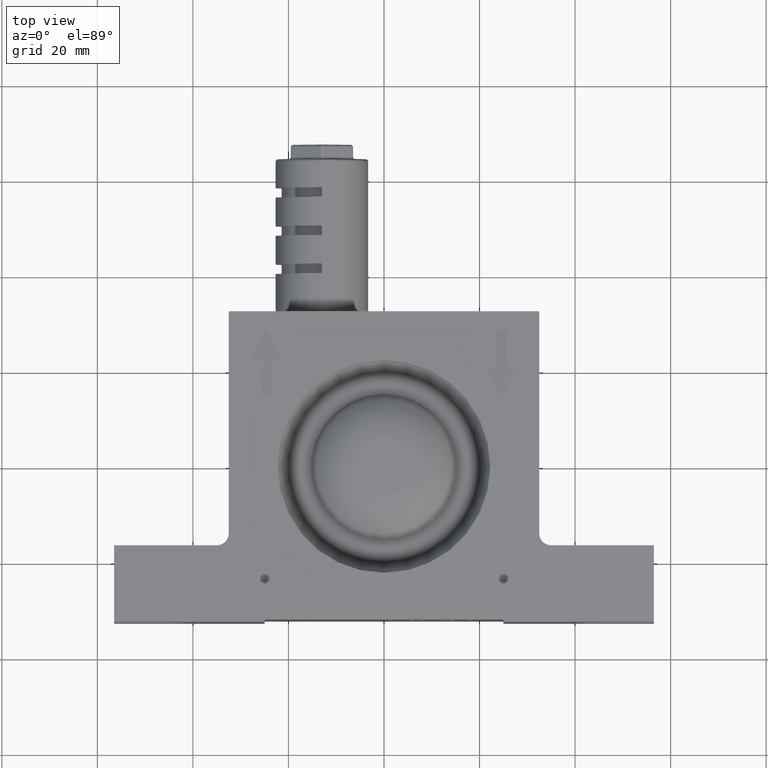
[diagram: clean part render]
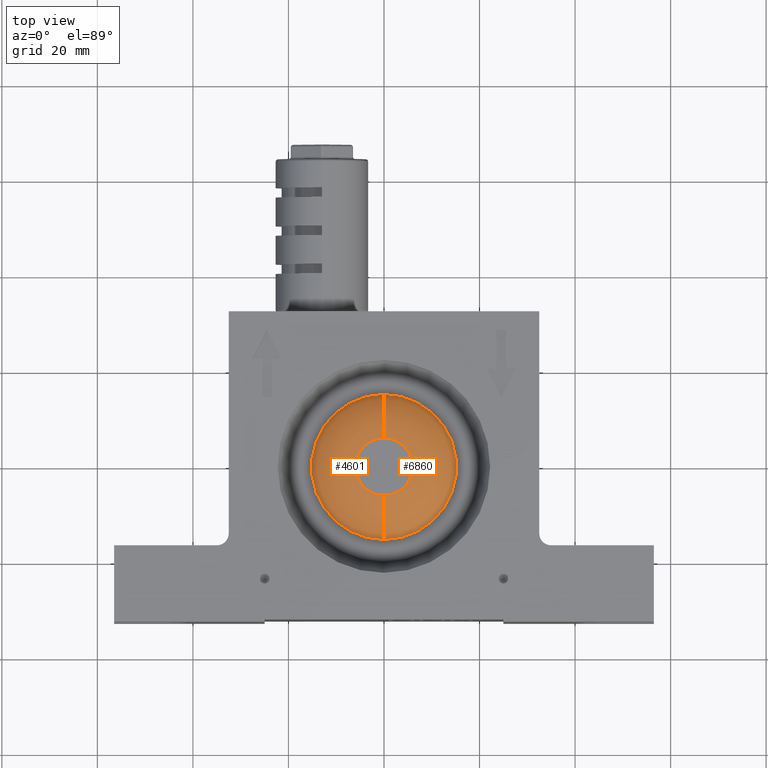
[diagram: same view with one multi-face feature highlighted, each face labeled with its STEP entity id]
A machine part, top view. The highlighted faces form ONE feature: a constant-radius fillet chain: 2 tangent blend faces with common blend radius 11.8 mm. The faces share edges in the B-rep.
Their STEP definitions:
[1] entity #6860 (Torus):
#270 = EDGE_CURVE ( 'NONE', #1251, #5383, #6215, .T. ) ;
#600 = AXIS2_PLACEMENT_3D ( 'NONE', #3809, #6098, #5522 ) ;
#798 = VERTEX_POINT ( 'NONE', #5099 ) ;
#815 = DIRECTION ( 'NONE',  ( 1.665334536937735100E-016, 1.000000000000000000, 0.0000000000000000000 ) ) ;
#888 = DIRECTION ( 'NONE',  ( 1.665334536937734800E-016, 1.000000000000000000, -1.224606353822375800E-016 ) ) ;
#1251 = VERTEX_POINT ( 'NONE', #5003 ) ;
#1829 = EDGE_CURVE ( 'NONE', #798, #1251, #2789, .T. ) ;
#2130 = TOROIDAL_SURFACE ( 'NONE', #3122, 6.000000000000000000, 11.79999999999999900 ) ;
#2501 = CARTESIAN_POINT ( 'NONE',  ( 1.040493808504870100E-015, 6.000000000000000000, 11.70000000000000100 ) ) ;
#2515 = DIRECTION ( 'NONE',  ( 8.602726321297810600E-018, 1.224606353822375800E-016, 1.000000000000000000 ) ) ;
#2789 = CIRCLE ( 'NONE', #600, 11.80000000000000100 ) ;
#2818 = ORIENTED_EDGE ( 'NONE', *, *, #1829, .F. ) ;
#3119 = CARTESIAN_POINT ( 'NONE',  ( 3.540626204963575200E-018, -8.270978742347319100E-016, 7.311570247933880200 ) ) ;
#3122 = AXIS2_PLACEMENT_3D ( 'NONE', #4115, #5164, #888 ) ;
#3436 = CARTESIAN_POINT ( 'NONE',  ( 4.129308634222925400E-017, 3.673819061467370500E-017, 11.70000000000000100 ) ) ;
#3809 = CARTESIAN_POINT ( 'NONE',  ( -1.794207885900138000E-015, -6.000000000000001800, -0.09999999999999927000 ) ) ;
#3908 = FACE_OUTER_BOUND ( 'NONE', #6897, .T. ) ;
#3959 = DIRECTION ( 'NONE',  ( 1.000000000000000000, -1.665334536937734800E-016, -8.602726321297790500E-018 ) ) ;
#4021 = ORIENTED_EDGE ( 'NONE', *, *, #5856, .T. ) ;
#4029 = CARTESIAN_POINT ( 'NONE',  ( 2.531847008248166400E-015, 15.18197290673095300, 7.311570247933878400 ) ) ;
#4115 = CARTESIAN_POINT ( 'NONE',  ( -6.021908424908500500E-017, -1.734723475976804900E-015, -0.1000000000000000100 ) ) ;
#4586 = DIRECTION ( 'NONE',  ( 1.665334536937735100E-016, 1.000000000000000000, 0.0000000000000000000 ) ) ;
#5003 = CARTESIAN_POINT ( 'NONE',  ( -3.038358461822026700E-015, -6.000000000000000000, 11.70000000000000100 ) ) ;
#5099 = CARTESIAN_POINT ( 'NONE',  ( -4.384021208335229300E-015, -15.18197290673095300, 7.311570247933882000 ) ) ;
#5164 = DIRECTION ( 'NONE',  ( 8.602726321297810600E-018, 1.224606353822375800E-016, 1.000000000000000000 ) ) ;
#5383 = VERTEX_POINT ( 'NONE', #2501 ) ;
#5481 = ORIENTED_EDGE ( 'NONE', *, *, #6424, .T. ) ;
#5522 = DIRECTION ( 'NONE',  ( -2.889981336085088800E-016, -1.000000000000000000, 0.0000000000000000000 ) ) ;
#5613 = CIRCLE ( 'NONE', #5990, 15.18197290673095200 ) ;
#5821 = DIRECTION ( 'NONE',  ( -1.665334536937734600E-016, -1.000000000000000000, 1.142620584711829400E-016 ) ) ;
#5856 = EDGE_CURVE ( 'NONE', #798, #6806, #5613, .T. ) ;
#5990 = AXIS2_PLACEMENT_3D ( 'NONE', #3119, #2515, #5821 ) ;
#6098 = DIRECTION ( 'NONE',  ( -1.000000000000000000, 2.889981336085088300E-016, 8.602726321297775100E-018 ) ) ;
#6191 = CARTESIAN_POINT ( 'NONE',  ( 9.389816379135560200E-016, 5.999999999999998200, -0.1000000000000007400 ) ) ;
#6215 = CIRCLE ( 'NONE', #6281, 6.000000000000000000 ) ;
#6217 = AXIS2_PLACEMENT_3D ( 'NONE', #6191, #3959, #4586 ) ;
#6281 = AXIS2_PLACEMENT_3D ( 'NONE', #3436, #6761, #815 ) ;
#6372 = CIRCLE ( 'NONE', #6217, 11.79999999999999700 ) ;
#6424 = EDGE_CURVE ( 'NONE', #6806, #5383, #6372, .T. ) ;
#6653 = ORIENTED_EDGE ( 'NONE', *, *, #270, .F. ) ;
#6761 = DIRECTION ( 'NONE',  ( 8.602726321297810600E-018, 1.224606353822375800E-016, 1.000000000000000000 ) ) ;
#6806 = VERTEX_POINT ( 'NONE', #4029 ) ;
#6860 = ADVANCED_FACE ( 'NONE', ( #3908 ), #2130, .T. ) ;
#6897 = EDGE_LOOP ( 'NONE', ( #2818, #4021, #5481, #6653 ) ) ;
[2] entity #4601 (Torus):
#441 = CARTESIAN_POINT ( 'NONE',  ( 4.129308634222925400E-017, 3.673819061467370500E-017, 11.70000000000000100 ) ) ;
#600 = AXIS2_PLACEMENT_3D ( 'NONE', #3809, #6098, #5522 ) ;
#798 = VERTEX_POINT ( 'NONE', #5099 ) ;
#1251 = VERTEX_POINT ( 'NONE', #5003 ) ;
#1414 = ORIENTED_EDGE ( 'NONE', *, *, #1829, .T. ) ;
#1440 = CARTESIAN_POINT ( 'NONE',  ( 3.540626204963575200E-018, -8.270978742347319100E-016, 7.311570247933880200 ) ) ;
#1699 = EDGE_CURVE ( 'NONE', #6806, #798, #6107, .T. ) ;
#1829 = EDGE_CURVE ( 'NONE', #798, #1251, #2789, .T. ) ;
#2501 = CARTESIAN_POINT ( 'NONE',  ( 1.040493808504870100E-015, 6.000000000000000000, 11.70000000000000100 ) ) ;
#2789 = CIRCLE ( 'NONE', #600, 11.80000000000000100 ) ;
#3444 = EDGE_CURVE ( 'NONE', #5383, #1251, #4317, .T. ) ;
#3518 = ORIENTED_EDGE ( 'NONE', *, *, #3444, .F. ) ;
#3709 = DIRECTION ( 'NONE',  ( 1.665334536937734800E-016, 1.000000000000000000, -1.224606353822375800E-016 ) ) ;
#3777 = AXIS2_PLACEMENT_3D ( 'NONE', #1440, #4249, #6419 ) ;
#3809 = CARTESIAN_POINT ( 'NONE',  ( -1.794207885900138000E-015, -6.000000000000001800, -0.09999999999999927000 ) ) ;
#3959 = DIRECTION ( 'NONE',  ( 1.000000000000000000, -1.665334536937734800E-016, -8.602726321297790500E-018 ) ) ;
#4018 = ORIENTED_EDGE ( 'NONE', *, *, #1699, .T. ) ;
#4029 = CARTESIAN_POINT ( 'NONE',  ( 2.531847008248166400E-015, 15.18197290673095300, 7.311570247933878400 ) ) ;
#4084 = AXIS2_PLACEMENT_3D ( 'NONE', #441, #5773, #5837 ) ;
#4249 = DIRECTION ( 'NONE',  ( 8.602726321297810600E-018, 1.224606353822375800E-016, 1.000000000000000000 ) ) ;
#4317 = CIRCLE ( 'NONE', #4084, 6.000000000000000000 ) ;
#4456 = FACE_OUTER_BOUND ( 'NONE', #5467, .T. ) ;
#4586 = DIRECTION ( 'NONE',  ( 1.665334536937735100E-016, 1.000000000000000000, 0.0000000000000000000 ) ) ;
#4601 = ADVANCED_FACE ( 'NONE', ( #4456 ), #5050, .T. ) ;
#5003 = CARTESIAN_POINT ( 'NONE',  ( -3.038358461822026700E-015, -6.000000000000000000, 11.70000000000000100 ) ) ;
#5028 = ORIENTED_EDGE ( 'NONE', *, *, #6424, .F. ) ;
#5050 = TOROIDAL_SURFACE ( 'NONE', #6790, 6.000000000000000000, 11.79999999999999900 ) ;
#5099 = CARTESIAN_POINT ( 'NONE',  ( -4.384021208335229300E-015, -15.18197290673095300, 7.311570247933882000 ) ) ;
#5383 = VERTEX_POINT ( 'NONE', #2501 ) ;
#5467 = EDGE_LOOP ( 'NONE', ( #4018, #1414, #3518, #5028 ) ) ;
#5522 = DIRECTION ( 'NONE',  ( -2.889981336085088800E-016, -1.000000000000000000, 0.0000000000000000000 ) ) ;
#5773 = DIRECTION ( 'NONE',  ( 8.602726321297810600E-018, 1.224606353822375800E-016, 1.000000000000000000 ) ) ;
#5837 = DIRECTION ( 'NONE',  ( 1.665334536937735100E-016, 1.000000000000000000, 0.0000000000000000000 ) ) ;
#5866 = DIRECTION ( 'NONE',  ( 8.602726321297810600E-018, 1.224606353822375800E-016, 1.000000000000000000 ) ) ;
#6098 = DIRECTION ( 'NONE',  ( -1.000000000000000000, 2.889981336085088300E-016, 8.602726321297775100E-018 ) ) ;
#6107 = CIRCLE ( 'NONE', #3777, 15.18197290673095200 ) ;
#6191 = CARTESIAN_POINT ( 'NONE',  ( 9.389816379135560200E-016, 5.999999999999998200, -0.1000000000000007400 ) ) ;
#6217 = AXIS2_PLACEMENT_3D ( 'NONE', #6191, #3959, #4586 ) ;
#6372 = CIRCLE ( 'NONE', #6217, 11.79999999999999700 ) ;
#6419 = DIRECTION ( 'NONE',  ( -1.665334536937734600E-016, -1.000000000000000000, 1.142620584711829400E-016 ) ) ;
#6424 = EDGE_CURVE ( 'NONE', #6806, #5383, #6372, .T. ) ;
#6435 = CARTESIAN_POINT ( 'NONE',  ( -6.021908424908500500E-017, -1.734723475976804900E-015, -0.1000000000000000100 ) ) ;
#6790 = AXIS2_PLACEMENT_3D ( 'NONE', #6435, #5866, #3709 ) ;
#6806 = VERTEX_POINT ( 'NONE', #4029 ) ;